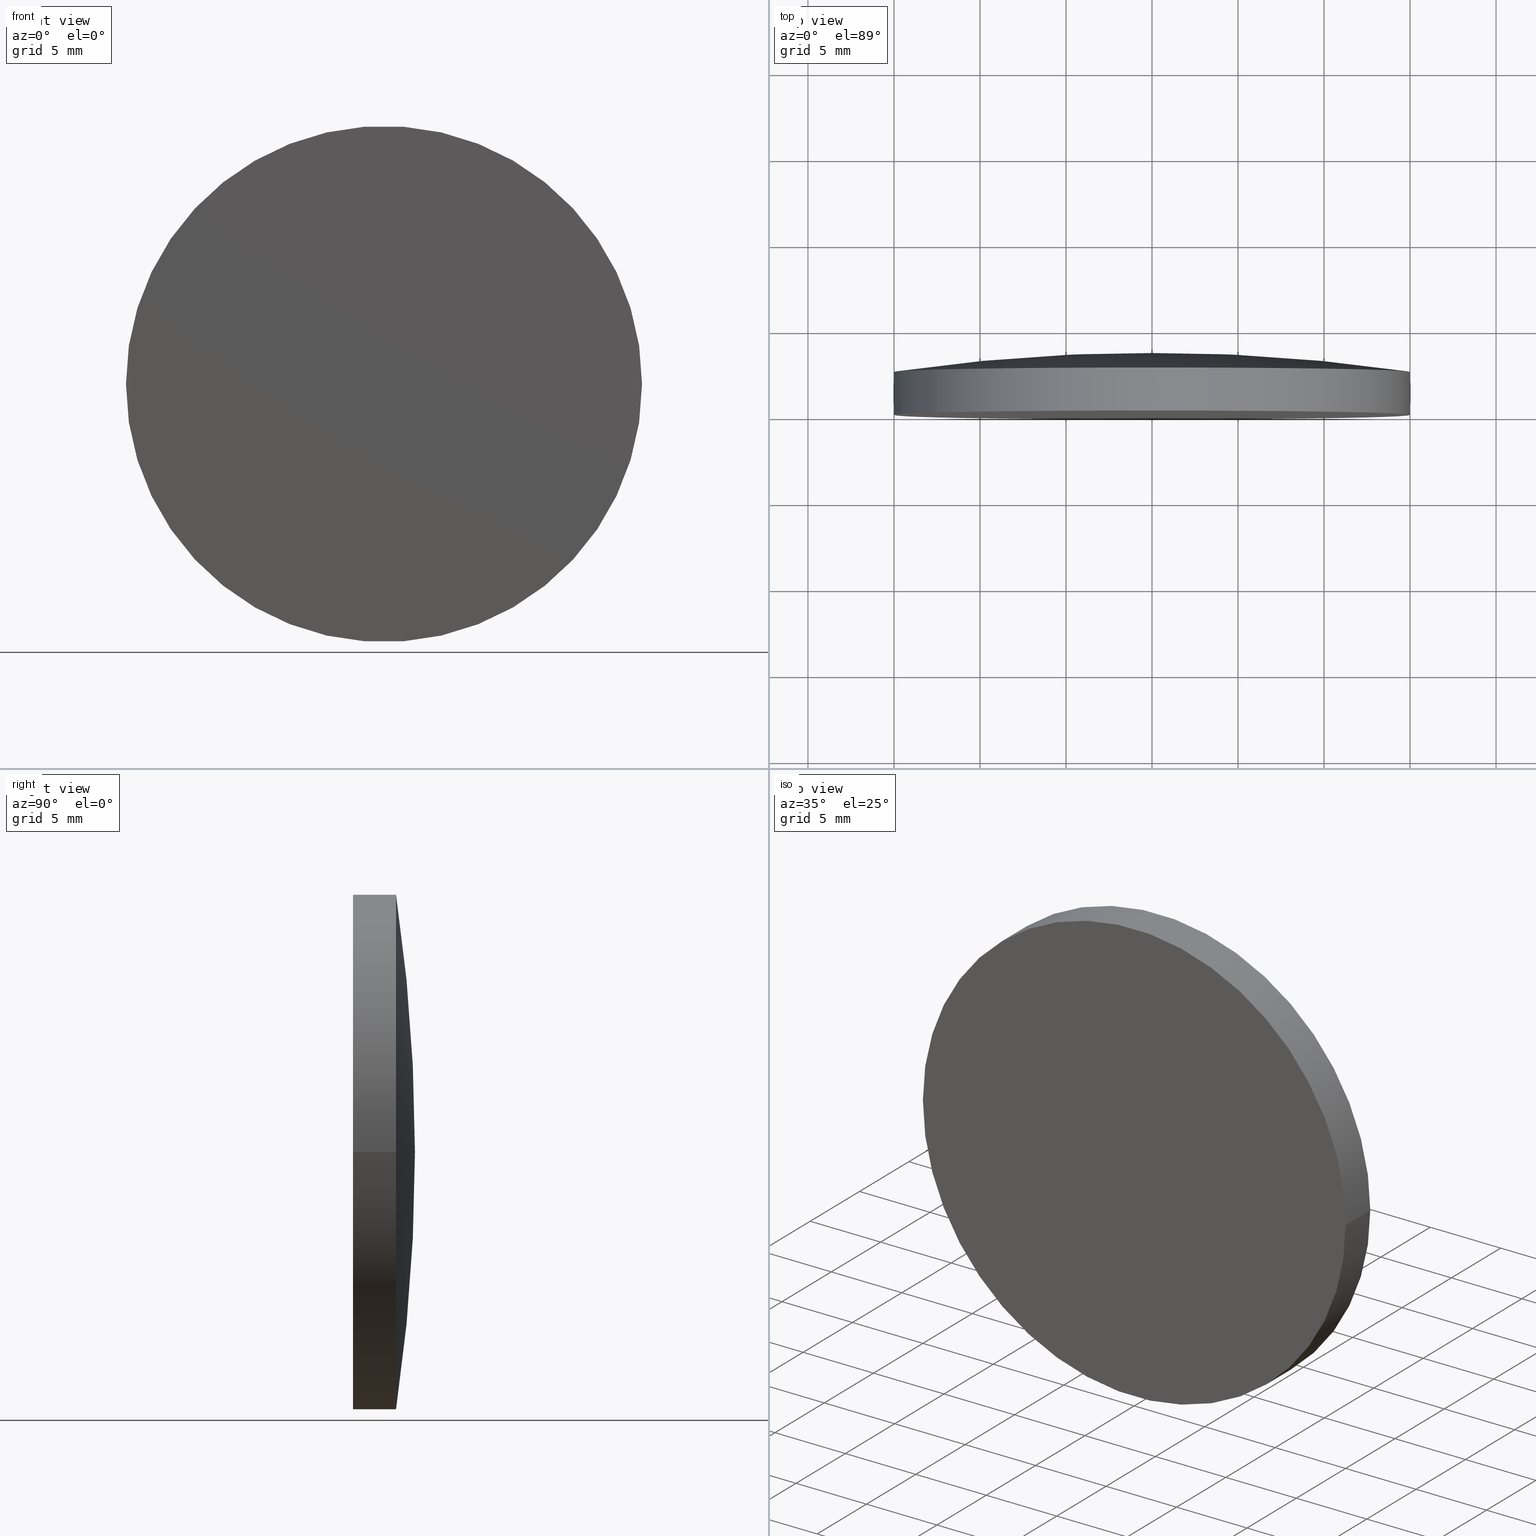
[diagram: canonical four-view strip — front | top / right | iso, engineering-drawing reading convention]
A machine part, canonical four-view strip (front | top / right | iso — engineering-drawing reading convention). The complete STEP part file that produces these views, byte-faithful:
ISO-10303-21;
HEADER;
FILE_DESCRIPTION (( 'STEP AP203' ),
    '1' );
FILE_NAME ('100578.STEP',
    '2024-05-10T01:08:51',
    ( '' ),
    ( '' ),
    'SwSTEP 2.0',
    'SolidWorks 2020',
    '' );
FILE_SCHEMA (( 'CONFIG_CONTROL_DESIGN' ));
ENDSEC;

DATA;
#1 = CARTESIAN_POINT ( 'NONE',  ( 9.252123447487062605E-16, 3.600000000000000089, 0.000000000000000000 ) ) ;
#2 = CALENDAR_DATE ( 2024, 10, 5 ) ;
#3 = AXIS2_PLACEMENT_3D ( 'NONE', #77, #137, #124 ) ;
#4 = APPROVAL_DATE_TIME ( #38, #42 ) ;
#5 = DATE_AND_TIME ( #177, #44 ) ;
#6 = CC_DESIGN_APPROVAL ( #42, ( #178 ) ) ;
#7 = PRODUCT_RELATED_PRODUCT_CATEGORY ( 'detail', '', ( #194 ) ) ;
#8 = ORIENTED_EDGE ( 'NONE', *, *, #160, .T. ) ;
#9 = VECTOR ( 'NONE', #106, 1000.000000000000000 ) ;
#10 = CC_DESIGN_SECURITY_CLASSIFICATION ( #178, ( #114 ) ) ;
#11 = VERTEX_POINT ( 'NONE', #74 ) ;
#12 = ADVANCED_FACE ( 'NONE', ( #105 ), #165, .T. ) ;
#13 = FACE_OUTER_BOUND ( 'NONE', #43, .T. ) ;
#14 = DIRECTION ( 'NONE',  ( -1.000000000000000000, 2.602085213965210149E-16, 0.000000000000000000 ) ) ;
#15 = DIRECTION ( 'NONE',  ( -1.000000000000000000, 2.570034290968628392E-16, 0.000000000000000000 ) ) ;
#16 = MANIFOLD_SOLID_BREP ( '��ת1', #52 ) ;
#17 = FACE_OUTER_BOUND ( 'NONE', #119, .T. ) ;
#18 = APPROVAL_DATE_TIME ( #5, #22 ) ;
#19 = AXIS2_PLACEMENT_3D ( 'NONE', #46, #99, #15 ) ;
#20 = DATE_TIME_ROLE ( 'creation_date' ) ;
#21 = APPROVAL_STATUS ( 'not_yet_approved' ) ;
#22 = APPROVAL ( #21, 'δָ��' ) ;
#23 = APPROVAL_ROLE ( '' ) ;
#24 = EDGE_LOOP ( 'NONE', ( #26, #8, #183, #180 ) ) ;
#25 = APPLICATION_CONTEXT ( 'configuration controlled 3d designs of mechanical parts and assemblies' ) ;
#26 = ORIENTED_EDGE ( 'NONE', *, *, #122, .T. ) ;
#27 =( GEOMETRIC_REPRESENTATION_CONTEXT ( 3 ) GLOBAL_UNCERTAINTY_ASSIGNED_CONTEXT ( ( #118 ) ) GLOBAL_UNIT_ASSIGNED_CONTEXT ( ( #31, #141, #110 ) ) REPRESENTATION_CONTEXT ( 'NONE', 'WORKASPACE' ) );
#28 = EDGE_CURVE ( 'NONE', #59, #93, #200, .T. ) ;
#29 = VERTEX_POINT ( 'NONE', #156 ) ;
#30 = ORIENTED_EDGE ( 'NONE', *, *, #160, .F. ) ;
#31 =( LENGTH_UNIT ( ) NAMED_UNIT ( * ) SI_UNIT ( .MILLI., .METRE. ) );
#32 = CALENDAR_DATE ( 2024, 10, 5 ) ;
#33 = DIRECTION ( 'NONE',  ( 2.570034290968628392E-16, 1.000000000000000000, -0.000000000000000000 ) ) ;
#34 = APPLICATION_PROTOCOL_DEFINITION ( 'international standard', 'config_control_design', 1994, #61 ) ;
#35 = AXIS2_PLACEMENT_3D ( 'NONE', #63, #186, #60 ) ;
#36 = CIRCLE ( 'NONE', #3, 103.2800000000000296 ) ;
#37 = COORDINATED_UNIVERSAL_TIME_OFFSET ( 8, 0, .AHEAD. ) ;
#38 = DATE_AND_TIME ( #192, #140 ) ;
#39 = ORIENTED_EDGE ( 'NONE', *, *, #28, .T. ) ;
#40 = EDGE_LOOP ( 'NONE', ( #39, #195, #201 ) ) ;
#41 = LOCAL_TIME ( 9, 8, 51.00000000000000000, #129 ) ;
#42 = APPROVAL ( #159, 'δָ��' ) ;
#43 = EDGE_LOOP ( 'NONE', ( #76, #108 ) ) ;
#44 = LOCAL_TIME ( 9, 8, 51.00000000000000000, #47 ) ;
#45 = DIRECTION ( 'NONE',  ( 2.570034290968628392E-16, 1.000000000000000000, -0.000000000000000000 ) ) ;
#46 = CARTESIAN_POINT ( 'NONE',  ( -9.629649721936179265E-31, -3.903127820947815962E-15, 0.000000000000000000 ) ) ;
#47 = COORDINATED_UNIVERSAL_TIME_OFFSET ( 8, 0, .AHEAD. ) ;
#48 = DIRECTION ( 'NONE',  ( -1.000000000000000000, 2.602085213965210642E-16, 0.000000000000000000 ) ) ;
#49 = PERSON_AND_ORGANIZATION_ROLE ( 'design_owner' ) ;
#50 = CARTESIAN_POINT ( 'NONE',  ( 9.252123447487062605E-16, 3.600000000000000089, 0.000000000000000000 ) ) ;
#51 = ADVANCED_FACE ( 'NONE', ( #182 ), #135, .T. ) ;
#52 = CLOSED_SHELL ( 'NONE', ( #187, #12, #147, #88, #51 ) ) ;
#53 = PERSON_AND_ORGANIZATION ( #134, #83 ) ;
#54 = APPROVAL_PERSON_ORGANIZATION ( #111, #120, #82 ) ;
#55 = DATE_TIME_ROLE ( 'classification_date' ) ;
#56 = ORIENTED_EDGE ( 'NONE', *, *, #58, .T. ) ;
#57 = AXIS2_PLACEMENT_3D ( 'NONE', #113, #103, #174 ) ;
#58 = EDGE_CURVE ( 'NONE', #59, #11, #62, .T. ) ;
#59 = VERTEX_POINT ( 'NONE', #154 ) ;
#60 = DIRECTION ( 'NONE',  ( -1.000000000000000000, 2.570034290968628392E-16, 0.000000000000000000 ) ) ;
#61 = APPLICATION_CONTEXT ( 'configuration controlled 3d designs of mechanical parts and assemblies' ) ;
#62 = CIRCLE ( 'NONE', #138, 103.2800000000000296 ) ;
#63 = CARTESIAN_POINT ( 'NONE',  ( -2.561427632497004225E-14, -99.67999455626598149, 0.000000000000000000 ) ) ;
#64 = CC_DESIGN_PERSON_AND_ORGANIZATION_ASSIGNMENT ( #179, #172, ( #178 ) ) ;
#65 = DATE_AND_TIME ( #32, #41 ) ;
#66 = CARTESIAN_POINT ( 'NONE',  ( 15.00000000000000178, 3.599999999999996092, 1.836970198721029589E-15 ) ) ;
#67 = EDGE_CURVE ( 'NONE', #29, #59, #198, .T. ) ;
#68 = APPROVAL_DATE_TIME ( #70, #120 ) ;
#69 = APPROVAL_STATUS ( 'not_yet_approved' ) ;
#70 = DATE_AND_TIME ( #87, #166 ) ;
#71 = SHAPE_DEFINITION_REPRESENTATION ( #161, #193 ) ;
#72 = EDGE_LOOP ( 'NONE', ( #30, #109, #96, #170 ) ) ;
#73 = AXIS2_PLACEMENT_3D ( 'NONE', #142, #33, #81 ) ;
#74 = CARTESIAN_POINT ( 'NONE',  ( 9.252123447487062605E-16, 3.600000000000000089, 0.000000000000000000 ) ) ;
#75 = CARTESIAN_POINT ( 'NONE',  ( 6.425085727421557667E-16, 2.499999999999994671, 0.000000000000000000 ) ) ;
#76 = ORIENTED_EDGE ( 'NONE', *, *, #122, .F. ) ;
#77 = CARTESIAN_POINT ( 'NONE',  ( -0.03353293412623493258, -99.67999455626598149, -4.106600044368128236E-18 ) ) ;
#78 = DIRECTION ( 'NONE',  ( 2.570034290968628392E-16, 1.000000000000000000, -0.000000000000000000 ) ) ;
#79 = CC_DESIGN_DATE_AND_TIME_ASSIGNMENT ( #128, #20, ( #95 ) ) ;
#80 = CARTESIAN_POINT ( 'NONE',  ( -2.561427632497004225E-14, -99.67999455626598149, 0.000000000000000000 ) ) ;
#81 = DIRECTION ( 'NONE',  ( -1.000000000000000000, 2.602085213965210149E-16, 0.000000000000000000 ) ) ;
#82 = APPROVAL_ROLE ( '' ) ;
#83 = ORGANIZATION ( 'δָ��', 'δָ��', '' ) ;
#84 = PERSON_AND_ORGANIZATION ( #134, #83 ) ;
#85 = DESIGN_CONTEXT ( 'detailed design', #61, 'design' ) ;
#86 = COORDINATED_UNIVERSAL_TIME_OFFSET ( 8, 0, .AHEAD. ) ;
#87 = CALENDAR_DATE ( 2024, 10, 5 ) ;
#88 = ADVANCED_FACE ( 'NONE', ( #13 ), #169, .T. ) ;
#89 = AXIS2_PLACEMENT_3D ( 'NONE', #80, #98, #188 ) ;
#90 = DIRECTION ( 'NONE',  ( -1.000000000000000000, 0.000000000000000000, 0.000000000000000000 ) ) ;
#91 = TOROIDAL_SURFACE ( 'NONE', #89, -0.03353293412620931419, 103.2800000000000296 ) ;
#92 = DIRECTION ( 'NONE',  ( -2.570034290968628392E-16, -1.000000000000000000, 0.000000000000000000 ) ) ;
#93 = VERTEX_POINT ( 'NONE', #136 ) ;
#94 = CARTESIAN_POINT ( 'NONE',  ( -4.953807192565965182E-31, -1.927525718226471442E-15, 0.000000000000000000 ) ) ;
#95 = PRODUCT_DEFINITION ( 'δ֪', '', #114, #85 ) ;
#96 = ORIENTED_EDGE ( 'NONE', *, *, #67, .T. ) ;
#97 = APPROVAL_PERSON_ORGANIZATION ( #84, #42, #150 ) ;
#98 = DIRECTION ( 'NONE',  ( 2.570034290968628392E-16, 1.000000000000000000, -0.000000000000000000 ) ) ;
#99 = DIRECTION ( 'NONE',  ( 2.570034290968628392E-16, 1.000000000000000000, -0.000000000000000000 ) ) ;
#100 = PERSON_AND_ORGANIZATION ( #134, #83 ) ;
#101 = LOCAL_TIME ( 9, 8, 51.00000000000000000, #86 ) ;
#102 = MECHANICAL_CONTEXT ( 'NONE', #25, 'mechanical' ) ;
#103 = DIRECTION ( 'NONE',  ( 0.000000000000000000, 0.000000000000000000, 1.000000000000000000 ) ) ;
#104 = EDGE_CURVE ( 'NONE', #93, #11, #36, .T. ) ;
#105 = FACE_OUTER_BOUND ( 'NONE', #40, .T. ) ;
#106 = DIRECTION ( 'NONE',  ( 2.570034290968628392E-16, 1.000000000000000000, -0.000000000000000000 ) ) ;
#107 = VECTOR ( 'NONE', #112, 1000.000000000000000 ) ;
#108 = ORIENTED_EDGE ( 'NONE', *, *, #197, .F. ) ;
#109 = ORIENTED_EDGE ( 'NONE', *, *, #197, .T. ) ;
#110 =( NAMED_UNIT ( * ) SI_UNIT ( $, .STERADIAN. ) SOLID_ANGLE_UNIT ( ) );
#111 = PERSON_AND_ORGANIZATION ( #134, #83 ) ;
#112 = DIRECTION ( 'NONE',  ( 2.570034290968628392E-16, 1.000000000000000000, -0.000000000000000000 ) ) ;
#113 = CARTESIAN_POINT ( 'NONE',  ( 0.000000000000000000, 0.000000000000000000, 0.000000000000000000 ) ) ;
#114 = PRODUCT_DEFINITION_FORMATION_WITH_SPECIFIED_SOURCE ( '�κ�', '', #194, .NOT_KNOWN. ) ;
#115 = PERSON_AND_ORGANIZATION ( #134, #83 ) ;
#116 = CC_DESIGN_PERSON_AND_ORGANIZATION_ASSIGNMENT ( #100, #49, ( #194 ) ) ;
#117 = ORIENTED_EDGE ( 'NONE', *, *, #104, .F. ) ;
#118 = UNCERTAINTY_MEASURE_WITH_UNIT (LENGTH_MEASURE( 1.000000000000000082E-05 ), #31, 'distance_accuracy_value', 'NONE');
#119 = EDGE_LOOP ( 'NONE', ( #117, #164, #56 ) ) ;
#120 = APPROVAL ( #69, 'δָ��' ) ;
#121 = CARTESIAN_POINT ( 'NONE',  ( -14.99999999999999822, 3.600000000000003642, 0.000000000000000000 ) ) ;
#122 = EDGE_CURVE ( 'NONE', #29, #139, #152, .T. ) ;
#123 = CIRCLE ( 'NONE', #73, 15.00000000000000178 ) ;
#124 = DIRECTION ( 'NONE',  ( 1.000000000000000000, 0.000000000000000000, 1.224646799147353207E-16 ) ) ;
#125 = DIRECTION ( 'NONE',  ( -0.000000000000000000, 0.000000000000000000, -1.000000000000000000 ) ) ;
#126 = DIRECTION ( 'NONE',  ( 2.570034290968628392E-16, 1.000000000000000000, -0.000000000000000000 ) ) ;
#127 = DIRECTION ( 'NONE',  ( -1.000000000000000000, 2.570034290968628392E-16, 0.000000000000000000 ) ) ;
#128 = DATE_AND_TIME ( #2, #101 ) ;
#129 = COORDINATED_UNIVERSAL_TIME_OFFSET ( 8, 0, .AHEAD. ) ;
#130 = PERSON_AND_ORGANIZATION_ROLE ( 'design_supplier' ) ;
#131 = CC_DESIGN_DATE_AND_TIME_ASSIGNMENT ( #65, #55, ( #178 ) ) ;
#132 = CC_DESIGN_APPROVAL ( #120, ( #114 ) ) ;
#133 = CIRCLE ( 'NONE', #19, 15.00000000000000000 ) ;
#134 = PERSON ( 'δָ��', 'δָ��', 'δָ��', ('δָ��'), ('δָ��'), ('δָ��') ) ;
#135 = CYLINDRICAL_SURFACE ( 'NONE', #175, 15.00000000000000000 ) ;
#136 = CARTESIAN_POINT ( 'NONE',  ( 15.00000000000007638, 2.499999999999989786, 1.836970198721038661E-15 ) ) ;
#137 = DIRECTION ( 'NONE',  ( -1.224646799147353207E-16, 3.147384268133668167E-32, 1.000000000000000000 ) ) ;
#138 = AXIS2_PLACEMENT_3D ( 'NONE', #199, #125, #90 ) ;
#139 = VERTEX_POINT ( 'NONE', #173 ) ;
#140 = LOCAL_TIME ( 9, 8, 51.00000000000000000, #148 ) ;
#141 =( NAMED_UNIT ( * ) PLANE_ANGLE_UNIT ( ) SI_UNIT ( $, .RADIAN. ) );
#142 = CARTESIAN_POINT ( 'NONE',  ( 6.425085727421557667E-16, 2.499999999999994671, 0.000000000000000000 ) ) ;
#143 = PERSON_AND_ORGANIZATION ( #134, #83 ) ;
#144 = AXIS2_PLACEMENT_3D ( 'NONE', #50, #126, #48 ) ;
#145 = CYLINDRICAL_SURFACE ( 'NONE', #144, 15.00000000000000000 ) ;
#146 = SECURITY_CLASSIFICATION_LEVEL ( 'unclassified' ) ;
#147 = ADVANCED_FACE ( 'NONE', ( #17 ), #91, .T. ) ;
#148 = COORDINATED_UNIVERSAL_TIME_OFFSET ( 8, 0, .AHEAD. ) ;
#149 = PERSON_AND_ORGANIZATION_ROLE ( 'creator' ) ;
#150 = APPROVAL_ROLE ( '' ) ;
#151 = AXIS2_PLACEMENT_3D ( 'NONE', #75, #45, #14 ) ;
#152 = CIRCLE ( 'NONE', #176, 15.00000000000000000 ) ;
#153 = CC_DESIGN_PERSON_AND_ORGANIZATION_ASSIGNMENT ( #191, #130, ( #114 ) ) ;
#154 = CARTESIAN_POINT ( 'NONE',  ( -15.00000000000007638, 2.499999999999993339, 0.000000000000000000 ) ) ;
#155 = DIRECTION ( 'NONE',  ( 1.000000000000000000, -2.570034290968628392E-16, 0.000000000000000000 ) ) ;
#156 = CARTESIAN_POINT ( 'NONE',  ( -15.00000000000000000, -4.807638449487346729E-17, 0.000000000000000000 ) ) ;
#157 = DIRECTION ( 'NONE',  ( 2.570034290968628392E-16, 1.000000000000000000, -0.000000000000000000 ) ) ;
#158 = FACE_OUTER_BOUND ( 'NONE', #24, .T. ) ;
#159 = APPROVAL_STATUS ( 'not_yet_approved' ) ;
#160 = EDGE_CURVE ( 'NONE', #139, #93, #190, .T. ) ;
#161 = PRODUCT_DEFINITION_SHAPE ( 'NONE', 'NONE',  #95 ) ;
#162 = AXIS2_PLACEMENT_3D ( 'NONE', #94, #92, #155 ) ;
#163 = PERSON_AND_ORGANIZATION_ROLE ( 'creator' ) ;
#164 = ORIENTED_EDGE ( 'NONE', *, *, #181, .T. ) ;
#165 = TOROIDAL_SURFACE ( 'NONE', #35, -0.03353293412620931419, 103.2800000000000296 ) ;
#166 = LOCAL_TIME ( 9, 8, 51.00000000000000000, #37 ) ;
#167 = CC_DESIGN_PERSON_AND_ORGANIZATION_ASSIGNMENT ( #115, #149, ( #95 ) ) ;
#168 = DIRECTION ( 'NONE',  ( -1.000000000000000000, 2.602085213965210642E-16, 0.000000000000000000 ) ) ;
#169 = PLANE ( 'NONE',  #162 ) ;
#170 = ORIENTED_EDGE ( 'NONE', *, *, #181, .F. ) ;
#171 = CC_DESIGN_PERSON_AND_ORGANIZATION_ASSIGNMENT ( #143, #163, ( #114 ) ) ;
#172 = PERSON_AND_ORGANIZATION_ROLE ( 'classification_officer' ) ;
#173 = CARTESIAN_POINT ( 'NONE',  ( 15.00000000000000000, -7.758179257400758057E-15, 1.836970198721029589E-15 ) ) ;
#174 = DIRECTION ( 'NONE',  ( 1.000000000000000000, 0.000000000000000000, 0.000000000000000000 ) ) ;
#175 = AXIS2_PLACEMENT_3D ( 'NONE', #1, #157, #168 ) ;
#176 = AXIS2_PLACEMENT_3D ( 'NONE', #185, #78, #127 ) ;
#177 = CALENDAR_DATE ( 2024, 10, 5 ) ;
#178 = SECURITY_CLASSIFICATION ( '', '', #146 ) ;
#179 = PERSON_AND_ORGANIZATION ( #134, #83 ) ;
#180 = ORIENTED_EDGE ( 'NONE', *, *, #67, .F. ) ;
#181 = EDGE_CURVE ( 'NONE', #93, #59, #123, .T. ) ;
#182 = FACE_OUTER_BOUND ( 'NONE', #72, .T. ) ;
#183 = ORIENTED_EDGE ( 'NONE', *, *, #28, .F. ) ;
#184 = CC_DESIGN_APPROVAL ( #22, ( #95 ) ) ;
#185 = CARTESIAN_POINT ( 'NONE',  ( -9.629649721936179265E-31, -3.903127820947815962E-15, 0.000000000000000000 ) ) ;
#186 = DIRECTION ( 'NONE',  ( 2.570034290968628392E-16, 1.000000000000000000, -0.000000000000000000 ) ) ;
#187 = ADVANCED_FACE ( 'NONE', ( #158 ), #145, .T. ) ;
#188 = DIRECTION ( 'NONE',  ( -1.000000000000000000, 2.570034290968628392E-16, 0.000000000000000000 ) ) ;
#189 = APPLICATION_PROTOCOL_DEFINITION ( 'international standard', 'config_control_design', 1994, #25 ) ;
#190 = LINE ( 'NONE', #66, #107 ) ;
#191 = PERSON_AND_ORGANIZATION ( #134, #83 ) ;
#192 = CALENDAR_DATE ( 2024, 10, 5 ) ;
#193 = ADVANCED_BREP_SHAPE_REPRESENTATION ( '100578', ( #16, #57 ), #27 ) ;
#194 = PRODUCT ( '100578', '100578', '', ( #102 ) ) ;
#195 = ORIENTED_EDGE ( 'NONE', *, *, #104, .T. ) ;
#196 = APPROVAL_PERSON_ORGANIZATION ( #53, #22, #23 ) ;
#197 = EDGE_CURVE ( 'NONE', #139, #29, #133, .T. ) ;
#198 = LINE ( 'NONE', #121, #9 ) ;
#199 = CARTESIAN_POINT ( 'NONE',  ( 0.03353293412618370273, -99.67999455626598149, 0.000000000000000000 ) ) ;
#200 = CIRCLE ( 'NONE', #151, 15.00000000000000178 ) ;
#201 = ORIENTED_EDGE ( 'NONE', *, *, #58, .F. ) ;
ENDSEC;
END-ISO-10303-21;
